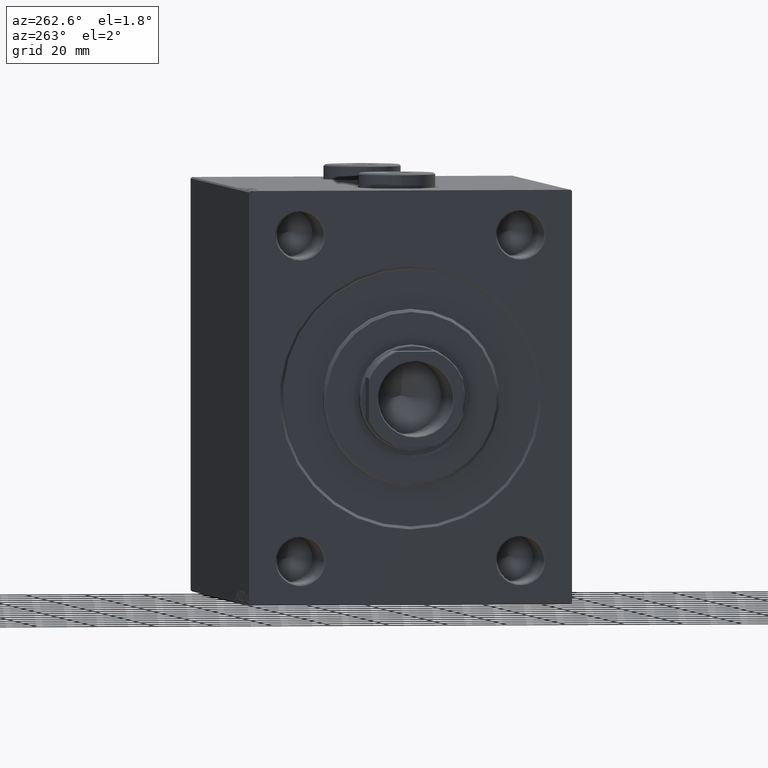
[diagram: clean part render]
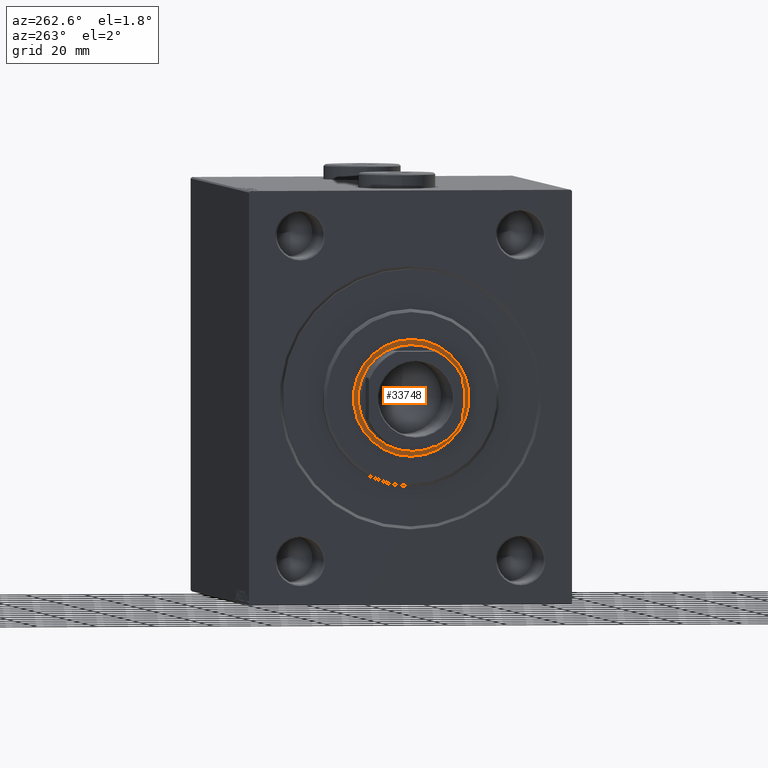
[diagram: same view with one face highlighted and labeled with its STEP entity id]
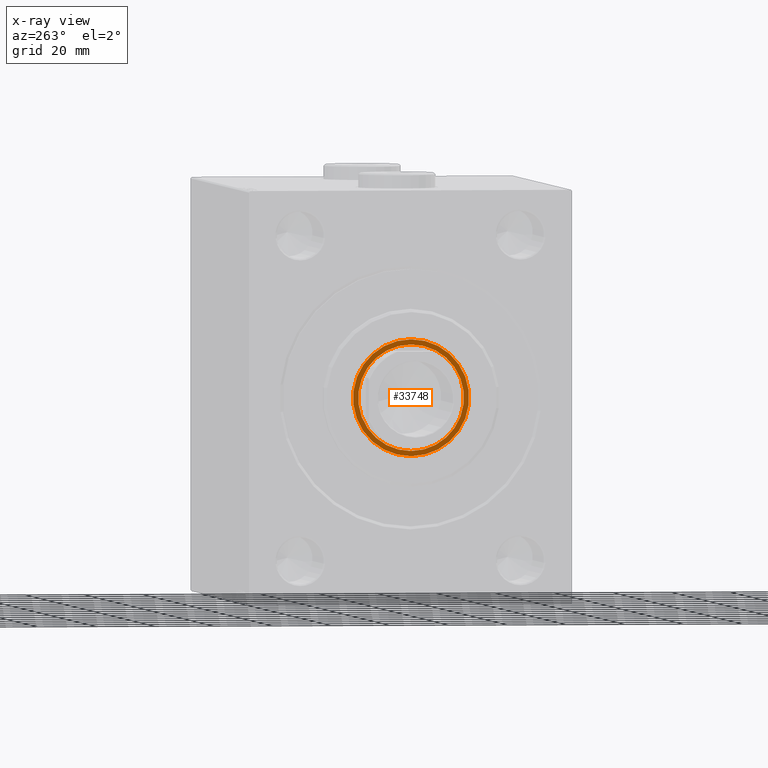
[diagram: x-ray of the same camera — body ghosted, the highlighted face saturated]
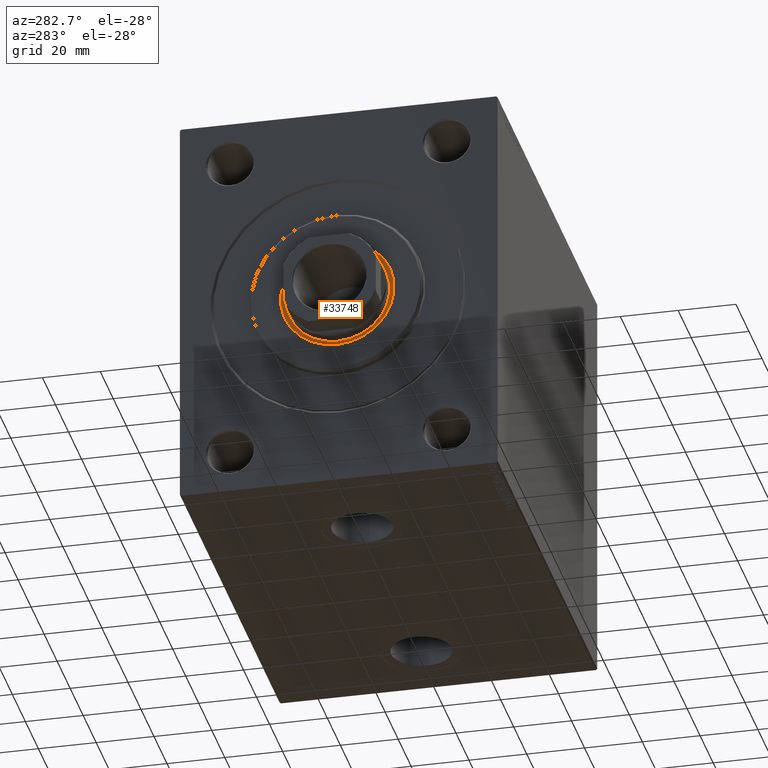
[diagram: same view with one face highlighted and labeled with its STEP entity id]
A machine part, auxiliary view. The second image highlights one B-rep face of the part: STEP entity #33748.
The next image is the same camera in x-ray: the body ghosted, the highlighted face saturated — about 0% of this face is hidden behind the body in this view.
A second angle (auxiliary view) of the same face is appended — the face is thin or edge-on in the first view.
In plain terms, the highlighted planar face has unit normal (-1, 0, 0).
Its self-contained STEP definition (entity closure, byte-faithful):
#1527 = AXIS2_PLACEMENT_3D ( 'NONE', #14187, #6347, #31773 ) ;
#3137 = FACE_BOUND ( 'NONE', #44448, .T. ) ;
#4798 = VERTEX_POINT ( 'NONE', #11722 ) ;
#5575 = AXIS2_PLACEMENT_3D ( 'NONE', #18114, #14659, #45661 ) ;
#6347 = DIRECTION ( 'NONE',  ( 1.000000000000000000, 0.000000000000000000, 0.000000000000000000 ) ) ;
#6627 = EDGE_CURVE ( 'NONE', #41883, #38012, #28386, .T. ) ;
#8925 = ORIENTED_EDGE ( 'NONE', *, *, #25840, .T. ) ;
#9760 = VERTEX_POINT ( 'NONE', #22106 ) ;
#11722 = CARTESIAN_POINT ( 'NONE',  ( 1.500000000000000000, 0.000000000000000000, 19.75000000000000000 ) ) ;
#12419 = CARTESIAN_POINT ( 'NONE',  ( 1.499999999999999556, 0.000000000000000000, 0.000000000000000000 ) ) ;
#12946 = AXIS2_PLACEMENT_3D ( 'NONE', #18270, #14813, #31711 ) ;
#14187 = CARTESIAN_POINT ( 'NONE',  ( 1.500000000000000000, 0.000000000000000000, 0.000000000000000000 ) ) ;
#14424 = FACE_OUTER_BOUND ( 'NONE', #28086, .T. ) ;
#14659 = DIRECTION ( 'NONE',  ( 1.000000000000000000, 0.000000000000000000, 0.000000000000000000 ) ) ;
#14813 = DIRECTION ( 'NONE',  ( 1.000000000000000000, 0.000000000000000000, 0.000000000000000000 ) ) ;
#16997 = DIRECTION ( 'NONE',  ( 1.000000000000000000, 0.000000000000000000, 0.000000000000000000 ) ) ;
#18114 = CARTESIAN_POINT ( 'NONE',  ( 1.500000000000000000, 0.000000000000000000, 0.000000000000000000 ) ) ;
#18270 = CARTESIAN_POINT ( 'NONE',  ( 1.500000000000000000, 0.000000000000000000, 0.000000000000000000 ) ) ;
#20336 = ORIENTED_EDGE ( 'NONE', *, *, #39171, .F. ) ;
#20349 = CIRCLE ( 'NONE', #12946, 19.75000000000000000 ) ;
#21428 = CIRCLE ( 'NONE', #1527, 19.75000000000000000 ) ;
#21820 = PLANE ( 'NONE',  #5575 ) ;
#22106 = CARTESIAN_POINT ( 'NONE',  ( 1.500000000000000000, 2.418677428316022331E-15, -19.75000000000000000 ) ) ;
#24155 = DIRECTION ( 'NONE',  ( 0.000000000000000000, 0.000000000000000000, -1.000000000000000000 ) ) ;
#25840 = EDGE_CURVE ( 'NONE', #4798, #9760, #21428, .T. ) ;
#26524 = DIRECTION ( 'NONE',  ( 1.000000000000000000, 0.000000000000000000, 0.000000000000000000 ) ) ;
#28086 = EDGE_LOOP ( 'NONE', ( #8925, #33090 ) ) ;
#28386 = CIRCLE ( 'NONE', #45403, 18.00000000000000000 ) ;
#28608 = CARTESIAN_POINT ( 'NONE',  ( 1.499999999999999556, 2.204364238465235428E-15, 18.00000000000000000 ) ) ;
#30011 = ORIENTED_EDGE ( 'NONE', *, *, #6627, .F. ) ;
#30131 = CARTESIAN_POINT ( 'NONE',  ( 1.499999999999999556, 0.000000000000000000, -18.00000000000000000 ) ) ;
#30633 = CARTESIAN_POINT ( 'NONE',  ( 1.499999999999999556, 0.000000000000000000, 0.000000000000000000 ) ) ;
#31711 = DIRECTION ( 'NONE',  ( 0.000000000000000000, 0.000000000000000000, -1.000000000000000000 ) ) ;
#31773 = DIRECTION ( 'NONE',  ( 0.000000000000000000, 0.000000000000000000, -1.000000000000000000 ) ) ;
#32262 = CIRCLE ( 'NONE', #34487, 18.00000000000000000 ) ;
#33090 = ORIENTED_EDGE ( 'NONE', *, *, #35782, .T. ) ;
#33748 = ADVANCED_FACE ( 'NONE', ( #3137, #14424 ), #21820, .T. ) ;
#34487 = AXIS2_PLACEMENT_3D ( 'NONE', #12419, #26524, #35841 ) ;
#35782 = EDGE_CURVE ( 'NONE', #9760, #4798, #20349, .T. ) ;
#35841 = DIRECTION ( 'NONE',  ( 0.000000000000000000, 0.000000000000000000, -1.000000000000000000 ) ) ;
#38012 = VERTEX_POINT ( 'NONE', #30131 ) ;
#39171 = EDGE_CURVE ( 'NONE', #38012, #41883, #32262, .T. ) ;
#41883 = VERTEX_POINT ( 'NONE', #28608 ) ;
#44448 = EDGE_LOOP ( 'NONE', ( #20336, #30011 ) ) ;
#45403 = AXIS2_PLACEMENT_3D ( 'NONE', #30633, #16997, #24155 ) ;
#45661 = DIRECTION ( 'NONE',  ( 0.000000000000000000, 0.000000000000000000, -1.000000000000000000 ) ) ;